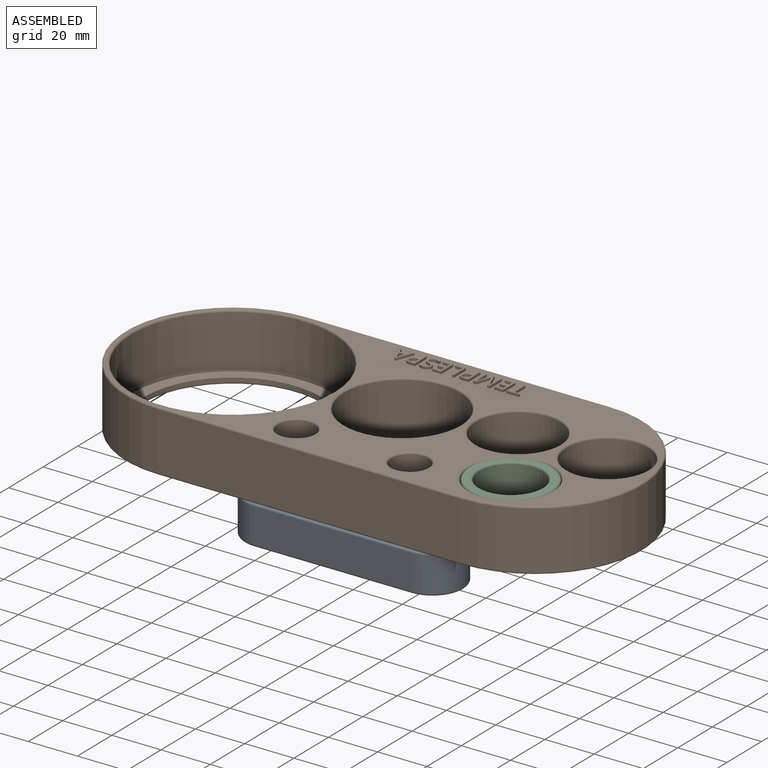
[diagram: assembled view]
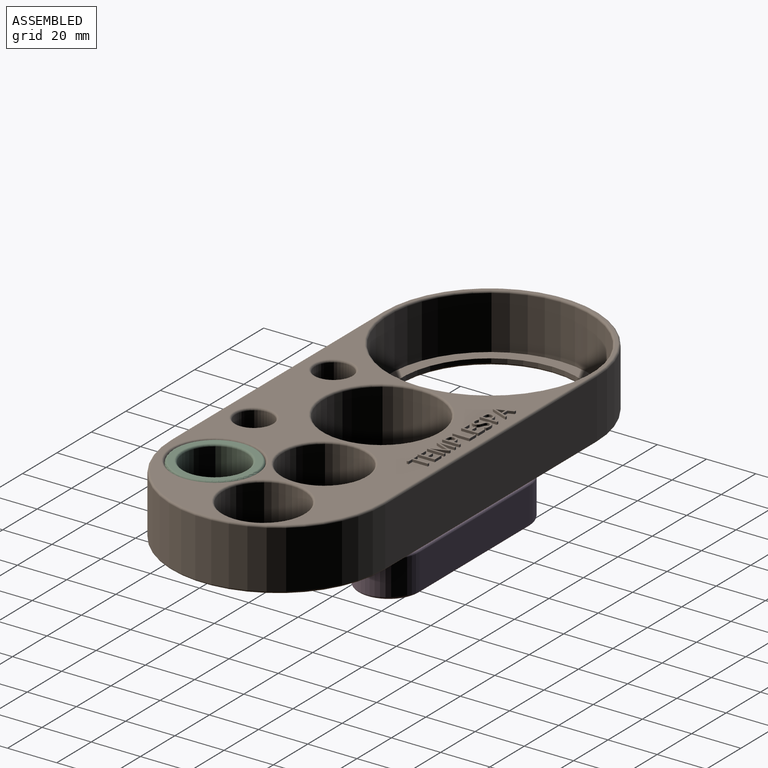
[diagram: assembled view, second angle]
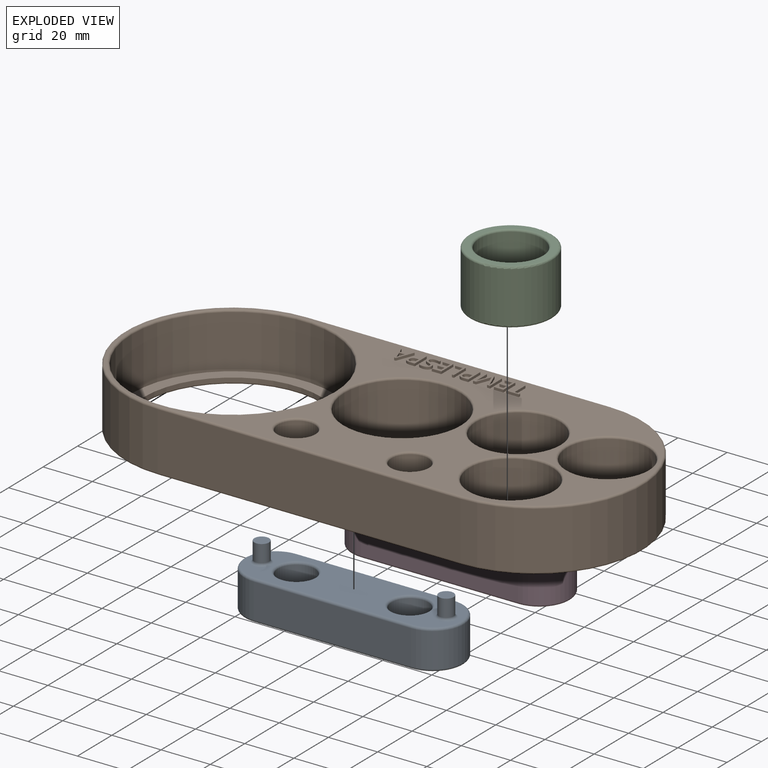
[diagram: exploded view]
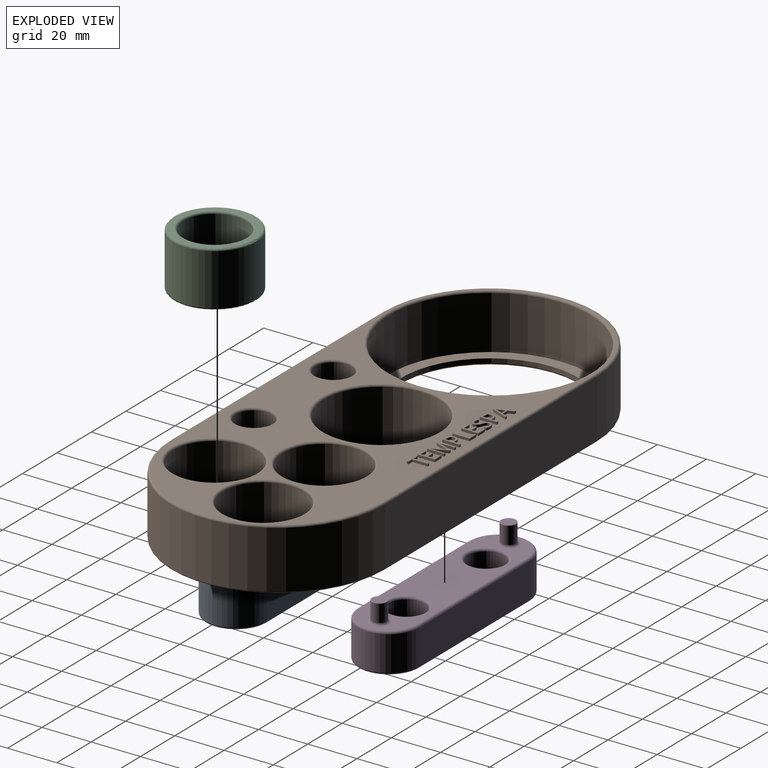
[diagram: exploded view, second angle]
ASSEMBLY  parts=4 mates=3
PART A: 26 faces, bbox 91.1x27.1x24 mm
  f0: plane 64x14mm, normal (0,1,0), area 896mm2, adj f1,f3,f18,f22
  f1: cylinder r=12.5mm len=25mm, axis (0,0,1), area 549.8mm2, adj f0,f2,f19,f23
  f2: plane 64x14mm, normal (0,-1,0), area 896mm2, adj f1,f3,f21,f25
  f3: cylinder r=12.5mm len=25mm, axis (0,0,1), area 549.8mm2, adj f0,f2,f20,f24
  f4: plane 87x23mm, normal (0,0,-1), area 1887.5mm2, adj f22,f23,f24,f25
  f5: plane 87x23mm, normal (0,0,1), area 1333mm2, adj f14,f15,f16,f17,f18,f19,f20,f21
  f6: cylinder r=7.5mm len=15mm, axis (0,0,1), area 589mm2, adj f7,f16
  f7: plane 15x15mm, normal (0,0,1), area 176.7mm2, adj f6
  f8: cylinder r=7.5mm len=15mm, axis (0,0,1), area 589mm2, adj f9,f17
  f9: plane 15x15mm, normal (0,0,1), area 176.7mm2, adj f8
  f10: cylinder r=3mm len=7mm, axis (0,0,-1), area 131.9mm2, adj f11,f14
  f11: plane 6x6mm, normal (0,0,1), area 28.3mm2, adj f10
  f12: cylinder r=3mm len=7mm, axis (0,0,-1), area 131.9mm2, adj f13,f15
  f13: plane 6x6mm, normal (0,0,1), area 28.3mm2, adj f12
  f14: torus R=4mm, axis (0,0,1), area 33.2mm2, adj f5,f10
  f15: torus R=4mm, axis (0,0,1), area 33.2mm2, adj f5,f12
  f16: torus R=8.5mm, axis (0,0,1), area 77.6mm2, adj f5,f6
  f17: torus R=8.5mm, axis (0,0,1), area 77.6mm2, adj f5,f8
  f18: cylinder r=1mm len=64mm, axis (-1,0,0), area 100.5mm2, adj f0,f5,f19,f20
  f19: torus R=11.5mm, axis (0,0,1), area 59.9mm2, adj f1,f5,f18,f21
  f20: torus R=11.5mm, axis (0,0,1), area 59.9mm2, adj f3,f5,f18,f21
  f21: cylinder r=1mm len=64mm, axis (1,0,0), area 100.5mm2, adj f2,f5,f19,f20
  f22: cylinder r=1mm len=64mm, axis (1,0,0), area 100.5mm2, adj f0,f4,f23,f24
  f23: torus R=11.5mm, axis (0,0,1), area 59.9mm2, adj f1,f4,f22,f25
  f24: torus R=11.5mm, axis (0,0,1), area 59.9mm2, adj f3,f4,f22,f25
  f25: cylinder r=1mm len=64mm, axis (-1,0,0), area 100.5mm2, adj f2,f4,f23,f24
PART B: 193 faces, bbox 217.2x94.2x26 mm
  f0: plane 208.33x85.33mm, normal (0,0,1), area 5351.4mm2, adj f42,f43,f44,f45,f46,f47,f48,f53
  f1: cylinder r=43.5mm len=87mm, axis (0,0,-1), area 3188.7mm2, adj f2,f4,f49,f53
  f2: plane 123x23.33mm, normal (0,-1,0), area 2870mm2, adj f1,f3,f50,f54
  f3: cylinder r=43.5mm len=87mm, axis (0,0,-1), area 3188.7mm2, adj f2,f4,f52,f56
  f4: plane 123x23.33mm, normal (0,1,0), area 2870mm2, adj f1,f3,f51,f55
  f5: plane 208.33x85.33mm, normal (0,0,-1), area 8620.1mm2, adj f31,f32,f33,f34,f35,f36,f37,f38
  f6: cylinder r=23.5mm len=47mm, axis (0,0,1), area 3199.2mm2, adj f7,f47
  f7: plane 47x47mm, normal (0,0,1), area 659.7mm2, adj f6,f20
  f8: cylinder r=17mm len=34mm, axis (0,0,1), area 2314.3mm2, adj f9,f46
  f9: plane 34x34mm, normal (0,0,1), area 455.5mm2, adj f8,f19
  f10: cylinder r=17mm len=34mm, axis (0,0,1), area 2314.3mm2, adj f11,f44
  f11: plane 34x34mm, normal (0,0,1), area 455.5mm2, adj f10,f18
  f12: cylinder r=16.5mm len=33mm, axis (0,0,1), area 2246.2mm2, adj f13,f45
  f13: plane 33x33mm, normal (0,0,1), area 439.8mm2, adj f12,f17
  f14: cylinder r=41mm len=82mm, axis (0,0,1), area 5581.6mm2, adj f15,f48
  f15: plane 82x82mm, normal (0,0,1), area 1209.5mm2, adj f14,f16
  f16: cylinder r=36mm len=72mm, axis (0,0,1), area 377mm2, adj f15,f41
  f17: cylinder r=11.5mm len=23mm, axis (0,0,1), area 120.4mm2, adj f13,f40
  f18: cylinder r=12mm len=24mm, axis (0,0,1), area 125.7mm2, adj f11,f39
  f19: cylinder r=12mm len=24mm, axis (0,0,1), area 125.7mm2, adj f9,f38
  f20: cylinder r=18.5mm len=37mm, axis (0,0,1), area 193.7mm2, adj f7,f37
  f21: cylinder r=7.5mm len=23.33mm, axis (0,0,1), area 1099.6mm2, adj f36,f43
  f22: cylinder r=7.5mm len=23.33mm, axis (0,0,1), area 1099.6mm2, adj f35,f42
  f23: cone r=0mm half-angle=59deg, axis (0,0,-1), area 38.7mm2, adj f24
  f24: cylinder r=3.25mm len=9.17mm, axis (0,0,-1), area 187.2mm2, adj f23,f34
  f25: cone r=0mm half-angle=59deg, axis (0,0,-1), area 38.7mm2, adj f26
  f26: cylinder r=3.25mm len=9.17mm, axis (0,0,-1), area 187.2mm2, adj f25,f33
  f27: cone r=0mm half-angle=59deg, axis (0,0,-1), area 38.7mm2, adj f28
  f28: cylinder r=3.25mm len=9.17mm, axis (0,0,-1), area 187.2mm2, adj f27,f32
  f29: cone r=0mm half-angle=59deg, axis (0,0,-1), area 38.7mm2, adj f30
  f30: cylinder r=3.25mm len=9.17mm, axis (0,0,-1), area 187.2mm2, adj f29,f31
  f31: torus R=4.08mm, axis (0,0,1), area 29.2mm2, adj f5,f30
  f32: torus R=4.08mm, axis (0,0,1), area 29.2mm2, adj f5,f28
  f33: torus R=4.08mm, axis (0,0,1), area 29.2mm2, adj f5,f26
  f34: torus R=4.08mm, axis (0,0,1), area 29.2mm2, adj f5,f24
  f35: torus R=8.33mm, axis (0,0,1), area 64.2mm2, adj f5,f22
  f36: torus R=8.33mm, axis (0,0,1), area 64.2mm2, adj f5,f21
  f37: torus R=19.33mm, axis (0,0,1), area 154.6mm2, adj f5,f20
  f38: torus R=12.83mm, axis (0,0,1), area 101.2mm2, adj f5,f19
  f39: torus R=12.83mm, axis (0,0,1), area 101.2mm2, adj f5,f18
  f40: torus R=12.33mm, axis (0,0,1), area 97.1mm2, adj f5,f17
  f41: torus R=36.83mm, axis (0,0,1), area 298.6mm2, adj f5,f16
  f42: torus R=8.33mm, axis (0,0,1), area 64.2mm2, adj f0,f22
  f43: torus R=8.33mm, axis (0,0,1), area 64.2mm2, adj f0,f21
  f44: torus R=17.83mm, axis (0,0,1), area 142.3mm2, adj f0,f10
  f45: torus R=17.33mm, axis (0,0,1), area 138.2mm2, adj f0,f12
  f46: torus R=17.83mm, axis (0,0,1), area 142.3mm2, adj f0,f8
  f47: torus R=24.33mm, axis (0,0,1), area 195.8mm2, adj f0,f6
  f48: torus R=41.83mm, axis (0,0,1), area 339.7mm2, adj f0,f14
  f49: torus R=42.67mm, axis (0,0,1), area 177.6mm2, adj f1,f5,f50,f51
  f50: cylinder r=0.83mm len=123mm, axis (1,0,0), area 161mm2, adj f2,f5,f49,f52
  f51: cylinder r=0.83mm len=123mm, axis (-1,0,0), area 161mm2, adj f4,f5,f49,f52
  f52: torus R=42.67mm, axis (0,0,1), area 177.6mm2, adj f3,f5,f50,f51
  f53: torus R=42.67mm, axis (0,0,1), area 177.6mm2, adj f0,f1,f54,f55
  f54: cylinder r=0.83mm len=123mm, axis (-1,0,0), area 161mm2, adj f0,f2,f53,f56
  f55: cylinder r=0.83mm len=123mm, axis (1,0,0), area 161mm2, adj f0,f4,f53,f56
  f56: torus R=42.67mm, axis (0,0,1), area 177.6mm2, adj f0,f3,f54,f55
  f57: plane 1x0.81mm, normal (0,1,0), area 0.8mm2, adj f0,f58,f64,f65
  f58: plane 6.26x1mm, normal (-1,0,0), area 6.3mm2, adj f0,f57,f59,f65
  f59: plane 2.21x1mm, normal (0,1,0), area 2.2mm2, adj f0,f58,f60,f65
  f60: plane 1x0.72mm, normal (-1,0,0), area 0.7mm2, adj f0,f59,f61,f65
  f61: plane 5.23x1mm, normal (0,-1,0), area 5.2mm2, adj f0,f60,f62,f65
  f62: plane 1x0.72mm, normal (1,0,0), area 0.7mm2, adj f0,f61,f63,f65
  f63: plane 2.21x1mm, normal (0,1,0), area 2.2mm2, adj f0,f62,f64,f65
  f64: plane 6.26x1mm, normal (1,0,0), area 6.3mm2, adj f0,f57,f63,f65
  f65: plane 6.98x5.23mm, normal (0,0,1), area 8.9mm2, adj f57,f58,f59,f60,f61,f62,f63,f64
  f66: plane 3.89x1mm, normal (0,1,0), area 3.9mm2, adj f0,f67,f77,f78
  f67: plane 1x0.73mm, normal (-1,0,0), area 0.7mm2, adj f0,f66,f68,f78
  f68: plane 3.08x1mm, normal (0,-1,0), area 3.1mm2, adj f0,f67,f69,f78
  f69: plane 2.57x1mm, normal (-1,0,0), area 2.6mm2, adj f0,f68,f70,f78
  f70: plane 2.89x1mm, normal (0,1,0), area 2.9mm2, adj f0,f69,f71,f78
  f71: plane 1x0.72mm, normal (-1,0,0), area 0.7mm2, adj f0,f70,f72,f78
  f72: plane 2.89x1mm, normal (0,-1,0), area 2.9mm2, adj f0,f71,f73,f78
  f73: plane 2.25x1mm, normal (-1,0,0), area 2.2mm2, adj f0,f72,f74,f78
  f74: plane 3.08x1mm, normal (0,1,0), area 3.1mm2, adj f0,f73,f75,f78
  f75: plane 1x0.72mm, normal (-1,0,0), area 0.7mm2, adj f0,f74,f76,f78
  f76: plane 3.89x1mm, normal (0,-1,0), area 3.9mm2, adj f0,f75,f77,f78
  f77: plane 6.98x1mm, normal (1,0,0), area 7mm2, adj f0,f66,f76,f78
  f78: plane 6.98x3.89mm, normal (0,0,1), area 12.2mm2, adj f66,f67,f68,f69,f70,f71,f72,f73
  f79: plane 6.19x2.37mm, normal (0.93,0.36,0), area 6.6mm2, adj f0,f80,f96,f97
  f80: plane 1x0.65mm, normal (0,1,0), area 0.7mm2, adj f0,f79,f81,f97
  f81: plane 6.18x2.39mm, normal (-0.93,0.36,0), area 6.6mm2, adj f0,f80,f82,f97
  f82: plane 1x0.04mm, normal (0,1,0), area 0mm2, adj f0,f81,f83,f97
  f83: extruded ~1.68x1mm, area 1.7mm2, adj f0,f82,f84,f97
  f84: plane 4.5x1mm, normal (1,0,0), area 4.5mm2, adj f0,f83,f85,f97
  f85: plane 1x0.81mm, normal (0,1,0), area 0.8mm2, adj f0,f84,f86,f97
  f86: plane 6.98x1mm, normal (-1,0,0), area 7mm2, adj f0,f85,f87,f97
  f87: plane 1.21x1mm, normal (0,-1,0), area 1.2mm2, adj f0,f86,f88,f97
  f88: plane 5.76x2.23mm, normal (0.93,-0.36,0), area 6.2mm2, adj f0,f87,f89,f97
  f89: plane 1x0.04mm, normal (0,-1,0), area 0mm2, adj f0,f88,f90,f97
  f90: plane 5.76x2.21mm, normal (-0.93,-0.36,0), area 6.2mm2, adj f0,f89,f91,f97
  f91: plane 1.22x1mm, normal (0,-1,0), area 1.2mm2, adj f0,f90,f92,f97
  f92: plane 6.98x1mm, normal (1,0,0), area 7mm2, adj f0,f91,f93,f97
  f93: plane 1x0.75mm, normal (0,1,0), area 0.8mm2, adj f0,f92,f94,f97
  f94: plane 4.44x1mm, normal (-1,0,0), area 4.4mm2, adj f0,f93,f95,f97
  f95: extruded ~1.75x1mm, area 1.7mm2, adj f0,f94,f96,f97
  f96: plane 1x0.04mm, normal (0,1,0), area 0mm2, adj f0,f79,f95,f97
  f97: plane 6.98x6.91mm, normal (0,0,1), area 20.8mm2, adj f79,f80,f81,f82,f83,f84,f85,f86
  f98: plane 1x0.73mm, normal (0,-1,0), area 0.7mm2, adj f99,f112,f113,f114
  f99: plane 2.84x1mm, normal (-1,0,0), area 2.8mm2, adj f98,f100,f113,f114
  f100: plane 1x0.91mm, normal (0,1,0), area 0.9mm2, adj f99,f101,f113,f114
  f101: extruded ~1.41x1mm, area 1.5mm2, adj f100,f102,f113,f114
  f102: extruded ~1.03x1mm, area 1.2mm2, adj f101,f103,f113,f114
  f103: extruded ~1.12x1mm, area 1.3mm2, adj f102,f112,f113,f114
  f104: extruded ~1.63x1mm, area 1.9mm2, adj f0,f105,f111,f113
  f105: extruded ~2.62x2.03mm, area 3.8mm2, adj f0,f104,f106,f113
  f106: plane 1.81x1mm, normal (0,-1,0), area 1.8mm2, adj f0,f105,f107,f113
  f107: plane 6.98x1mm, normal (1,0,0), area 7mm2, adj f0,f106,f108,f113
  f108: plane 1x0.81mm, normal (0,1,0), area 0.8mm2, adj f0,f107,f109,f113
  f109: plane 2.75x1mm, normal (-1,0,0), area 2.7mm2, adj f0,f108,f110,f113
  f110: plane 1x0.82mm, normal (0,1,0), area 0.8mm2, adj f0,f109,f111,f113
  f111: extruded ~2.07x1mm, area 2.2mm2, adj f0,f104,f110,f113
  f112: extruded ~1.56x1mm, area 1.6mm2, adj f98,f103,f113,f114
  f113: plane 6.98x4.43mm, normal (0,0,1), area 12mm2, adj f98,f99,f100,f101,f102,f103,f104,f105
  f114: plane 2.84x2.77mm, normal (0,0,1), area 7mm2, adj f98,f99,f100,f101,f102,f103,f112
  f115: plane 6.98x1mm, normal (1,0,0), area 7mm2, adj f0,f116,f120,f121
  f116: plane 3.89x1mm, normal (0,1,0), area 3.9mm2, adj f0,f115,f117,f121
  f117: plane 1x0.74mm, normal (-1,0,0), area 0.7mm2, adj f0,f116,f118,f121
  f118: plane 3.08x1mm, normal (0,-1,0), area 3.1mm2, adj f0,f117,f119,f121
  f119: plane 6.25x1mm, normal (-1,0,0), area 6.2mm2, adj f0,f118,f120,f121
  f120: plane 1x0.81mm, normal (0,-1,0), area 0.8mm2, adj f0,f115,f119,f121
  f121: plane 6.98x3.89mm, normal (0,0,1), area 7.9mm2, adj f115,f116,f117,f118,f119,f120
  f122: plane 3.89x1mm, normal (0,1,0), area 3.9mm2, adj f0,f123,f133,f134
  f123: plane 1x0.73mm, normal (-1,0,0), area 0.7mm2, adj f0,f122,f124,f134
  f124: plane 3.08x1mm, normal (0,-1,0), area 3.1mm2, adj f0,f123,f125,f134
  f125: plane 2.57x1mm, normal (-1,0,0), area 2.6mm2, adj f0,f124,f126,f134
  f126: plane 2.89x1mm, normal (0,1,0), area 2.9mm2, adj f0,f125,f127,f134
  f127: plane 1x0.72mm, normal (-1,0,0), area 0.7mm2, adj f0,f126,f128,f134
  f128: plane 2.89x1mm, normal (0,-1,0), area 2.9mm2, adj f0,f127,f129,f134
  f129: plane 2.25x1mm, normal (-1,0,0), area 2.2mm2, adj f0,f128,f130,f134
  f130: plane 3.08x1mm, normal (0,1,0), area 3.1mm2, adj f0,f129,f131,f134
  f131: plane 1x0.72mm, normal (-1,0,0), area 0.7mm2, adj f0,f130,f132,f134
  f132: plane 3.89x1mm, normal (0,-1,0), area 3.9mm2, adj f0,f131,f133,f134
  f133: plane 6.98x1mm, normal (1,0,0), area 7mm2, adj f0,f122,f132,f134
  f134: plane 6.98x3.89mm, normal (0,0,1), area 12.2mm2, adj f122,f123,f124,f125,f126,f127,f128,f129
  f135: extruded ~1.44x1mm, area 1.6mm2, adj f0,f136,f159,f160
  f136: extruded ~1.16x1mm, area 1.3mm2, adj f0,f135,f137,f160
  f137: extruded ~1.51x1mm, area 1.7mm2, adj f0,f136,f138,f160
  f138: extruded ~1x0.97mm, area 1.1mm2, adj f0,f137,f139,f160
  f139: extruded ~1x0.45mm, area 0.6mm2, adj f0,f138,f140,f160
  f140: extruded ~1x0.59mm, area 0.6mm2, adj f0,f139,f141,f160
  f141: extruded ~1x0.77mm, area 0.9mm2, adj f0,f140,f142,f160
  f142: extruded ~1.01x1mm, area 1.1mm2, adj f0,f141,f143,f160
  f143: extruded ~1.68x1mm, area 1.7mm2, adj f0,f142,f144,f160
  f144: plane 1x0.71mm, normal (-0.94,0.34,0), area 0.7mm2, adj f0,f143,f145,f160
  f145: extruded ~1.91x1mm, area 2mm2, adj f0,f144,f146,f160
  f146: extruded ~1.61x1mm, area 1.7mm2, adj f0,f145,f147,f160
  f147: extruded ~1.28x1mm, area 1.5mm2, adj f0,f146,f148,f160
  f148: extruded ~1.25x1mm, area 1.3mm2, adj f0,f147,f149,f160
  f149: extruded ~1.39x1mm, area 1.6mm2, adj f0,f148,f150,f160
  f150: extruded ~1.04x1mm, area 1.1mm2, adj f0,f149,f151,f160
  f151: extruded ~1x0.49mm, area 0.7mm2, adj f0,f150,f152,f160
  f152: extruded ~1x0.59mm, area 0.6mm2, adj f0,f151,f153,f160
  f153: extruded ~1x0.86mm, area 1mm2, adj f0,f152,f154,f160
  f154: extruded ~1.22x1mm, area 1.3mm2, adj f0,f153,f155,f160
  f155: extruded ~1x1mm, area 1mm2, adj f0,f154,f156,f160
  f156: extruded ~1x0.94mm, area 1mm2, adj f0,f155,f157,f160
  f157: plane 1x0.78mm, normal (1,0,0), area 0.8mm2, adj f0,f156,f158,f160
  f158: extruded ~1.91x1mm, area 2mm2, adj f0,f157,f159,f160
  f159: extruded ~1.81x1mm, area 1.9mm2, adj f0,f135,f158,f160
  f160: plane 7.18x4.39mm, normal (0,0,1), area 11.3mm2, adj f135,f136,f137,f138,f139,f140,f141,f142
  f161: plane 1x0.73mm, normal (0,-1,0), area 0.7mm2, adj f162,f175,f176,f177
  f162: plane 2.84x1mm, normal (-1,0,0), area 2.8mm2, adj f161,f163,f176,f177
  f163: plane 1x0.91mm, normal (0,1,0), area 0.9mm2, adj f162,f164,f176,f177
  f164: extruded ~1.41x1mm, area 1.5mm2, adj f163,f165,f176,f177
  f165: extruded ~1.03x1mm, area 1.2mm2, adj f164,f166,f176,f177
  f166: extruded ~1.12x1mm, area 1.3mm2, adj f165,f175,f176,f177
  f167: extruded ~1.63x1mm, area 1.9mm2, adj f0,f168,f174,f176
  f168: extruded ~2.62x2.03mm, area 3.8mm2, adj f0,f167,f169,f176
  f169: plane 1.81x1mm, normal (0,-1,0), area 1.8mm2, adj f0,f168,f170,f176
  f170: plane 6.98x1mm, normal (1,0,0), area 7mm2, adj f0,f169,f171,f176
  f171: plane 1x0.81mm, normal (0,1,0), area 0.8mm2, adj f0,f170,f172,f176
  f172: plane 2.75x1mm, normal (-1,0,0), area 2.7mm2, adj f0,f171,f173,f176
  f173: plane 1x0.82mm, normal (0,1,0), area 0.8mm2, adj f0,f172,f174,f176
  f174: extruded ~2.07x1mm, area 2.2mm2, adj f0,f167,f173,f176
  f175: extruded ~1.56x1mm, area 1.6mm2, adj f161,f166,f176,f177
  f176: plane 6.98x4.43mm, normal (0,0,1), area 12mm2, adj f161,f162,f163,f164,f165,f166,f167,f168
  f177: plane 2.84x2.77mm, normal (0,0,1), area 7mm2, adj f161,f162,f163,f164,f165,f166,f175
  f178: plane 2.16x1mm, normal (0.94,0.35,0), area 2.3mm2, adj f179,f190,f191,f192
  f179: plane 2.26x1mm, normal (0,-1,0), area 2.3mm2, adj f178,f180,f191,f192
  f180: plane 2.16x1mm, normal (-0.94,0.35,0), area 2.3mm2, adj f179,f181,f191,f192
  f181: extruded ~1.01x1mm, area 1.1mm2, adj f180,f190,f191,f192
  f182: plane 2.22x1mm, normal (0.93,0.36,0), area 2.4mm2, adj f0,f183,f189,f191
  f183: plane 1x0.84mm, normal (0,1,0), area 0.8mm2, adj f0,f182,f184,f191
  f184: plane 7.01x2.75mm, normal (-0.93,-0.36,0), area 7.5mm2, adj f0,f183,f185,f191
  f185: plane 1x0.68mm, normal (0,-1,0), area 0.7mm2, adj f0,f184,f186,f191
  f186: plane 7.01x2.76mm, normal (0.93,-0.37,0), area 7.5mm2, adj f0,f185,f187,f191
  f187: plane 1x0.82mm, normal (0,1,0), area 0.8mm2, adj f0,f186,f188,f191
  f188: plane 2.22x1mm, normal (-0.93,0.36,0), area 2.4mm2, adj f0,f187,f189,f191
  f189: plane 2.8x1mm, normal (0,1,0), area 2.8mm2, adj f0,f182,f188,f191
  f190: extruded ~1.01x1mm, area 1.1mm2, adj f178,f181,f191,f192
  f191: plane 7.01x6.19mm, normal (0,0,1), area 12.5mm2, adj f178,f179,f180,f181,f182,f183,f184,f185
  f192: plane 3.17x2.26mm, normal (0,0,1), area 3.4mm2, adj f178,f179,f180,f181,f190
PART C: 10 faces, bbox 36.3x36.3x22.5 mm
  f0: cylinder r=7.75mm len=15.5mm, axis (0,0,-1), area 81.2mm2, adj f5,f7
  f1: cylinder r=16.75mm len=33.5mm, axis (0,0,-1), area 2192.6mm2, adj f8,f9
  f2: plane 31.83x31.83mm, normal (0,0,1), area 216.2mm2, adj f6,f9
  f3: plane 31.83x31.83mm, normal (0,0,-1), area 564.4mm2, adj f7,f8
  f4: cylinder r=12.75mm len=25.5mm, axis (0,0,1), area 1535.5mm2, adj f5,f6
  f5: plane 25.5x25.5mm, normal (0,0,1), area 322mm2, adj f0,f4
  f6: torus R=13.58mm, axis (0,0,1), area 107.4mm2, adj f2,f4
  f7: torus R=8.58mm, axis (0,0,1), area 66.2mm2, adj f0,f3
  f8: torus R=15.92mm, axis (0,0,1), area 135.3mm2, adj f1,f3
  f9: torus R=15.92mm, axis (0,0,1), area 135.3mm2, adj f1,f2
PART D: same geometry as A
PLACE A t=(-5.44,-2.83,100)mm
PLACE B t=(-5.44,-2.83,0)mm
PLACE C t=(-5.44,-2.83,100)mm
PLACE D t=(-5.44,59.17,100)mm
MATE slider B.f23 <-> A.f10  axis (0,0,-1) through (-33.44,-33.83,0)mm
MATE slider B.f29 <-> D.f10  axis (0,0,-1) through (-33.44,28.17,0)mm
MATE slider B.f10 <-> C.f0  axis (0,0,1) through (61.44,-24.7,2.5)mm
